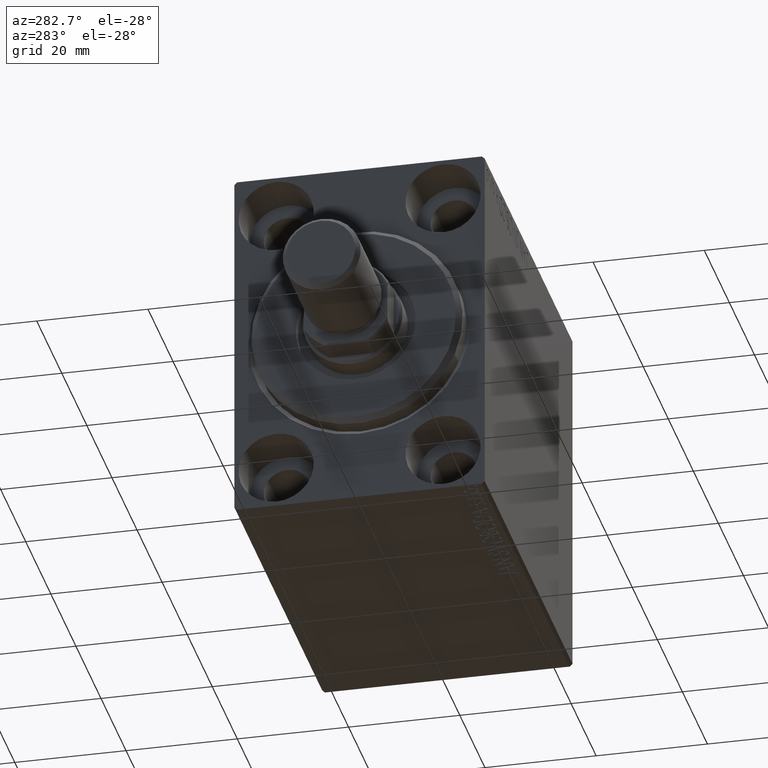
[diagram: clean part render]
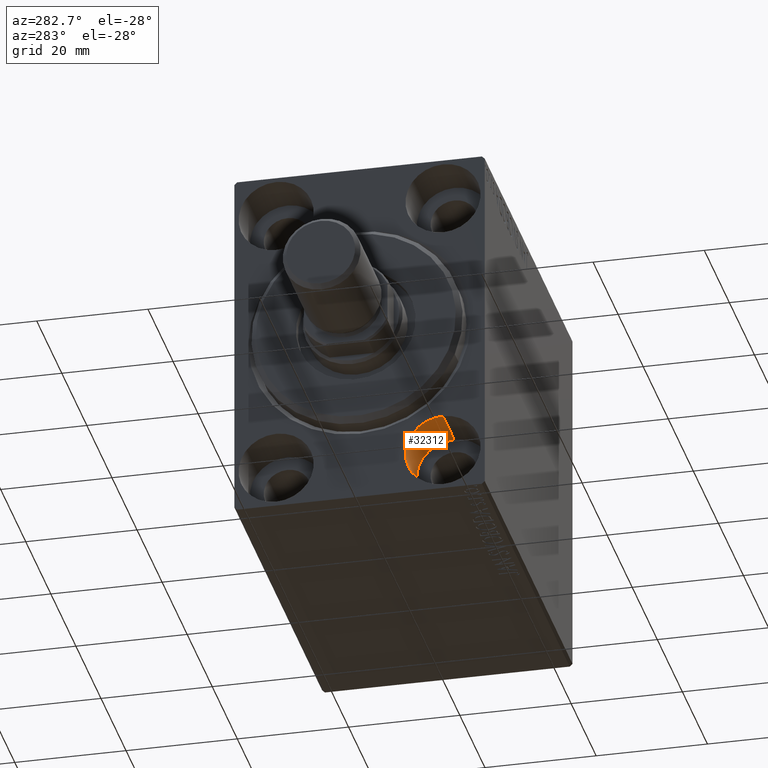
[diagram: same view with one face highlighted and labeled with its STEP entity id]
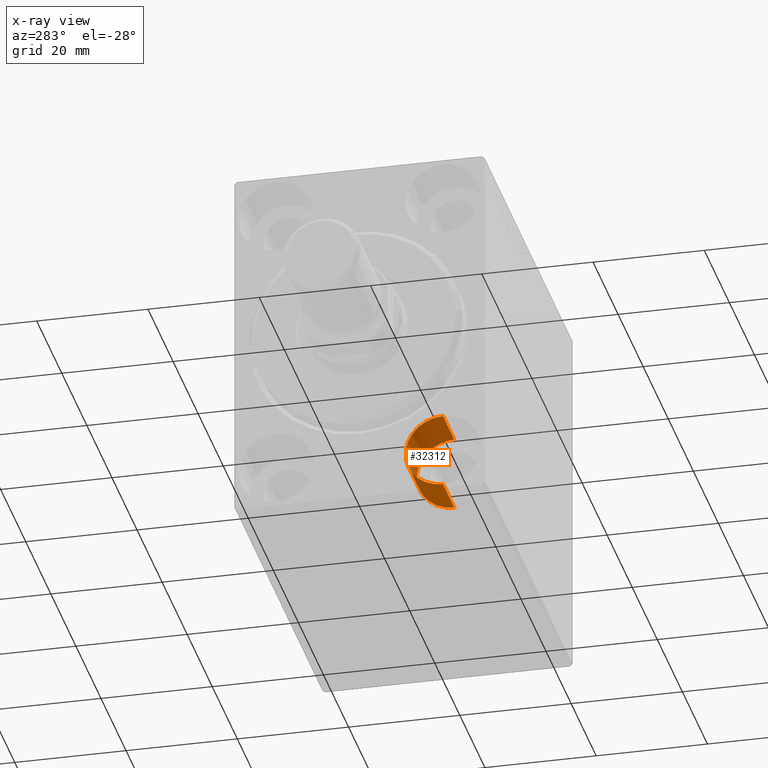
[diagram: x-ray of the same camera — body ghosted, the highlighted face saturated]
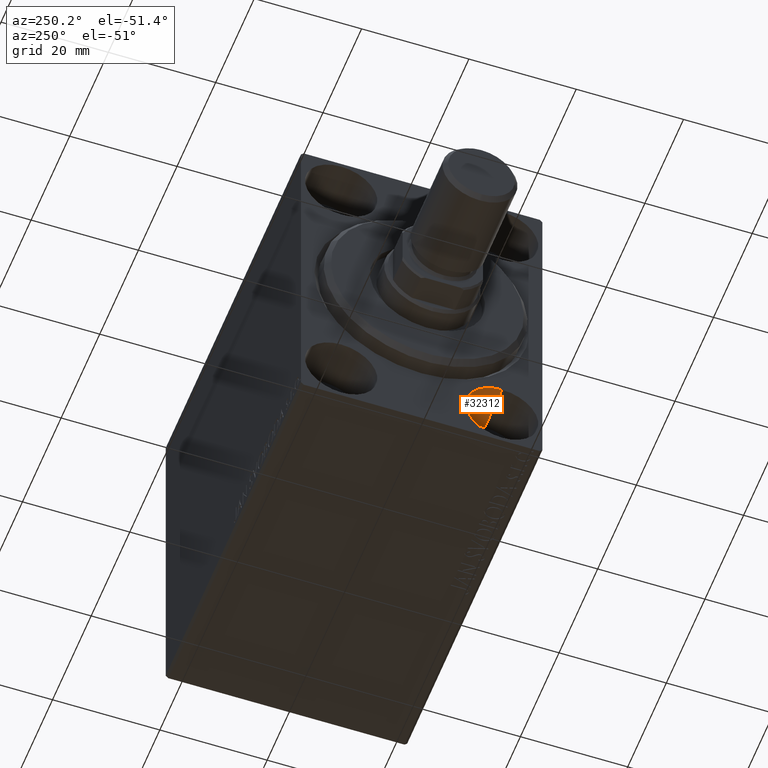
[diagram: same view with one face highlighted and labeled with its STEP entity id]
A machine part, auxiliary view. The second image highlights one B-rep face of the part: STEP entity #32312.
The next image is the same camera in x-ray: the body ghosted, the highlighted face saturated — about 0% of this face is hidden behind the body in this view.
A second angle (auxiliary view) of the same face is appended — the face is thin or edge-on in the first view.
In plain terms, the highlighted cylindrical surface (partial cylindrical patch) has radius 6.75 mm, axis along (-1, -0, -0).
Its self-contained STEP definition (entity closure, byte-faithful):
#1242 = CARTESIAN_POINT ( 'NONE',  ( 0.000000000000000000, -15.00000000000000355, -31.75000000000000000 ) ) ;
#1720 = AXIS2_PLACEMENT_3D ( 'NONE', #19889, #20110, #20325 ) ;
#3024 = CYLINDRICAL_SURFACE ( 'NONE', #1720, 6.749999999999999112 ) ;
#4240 = AXIS2_PLACEMENT_3D ( 'NONE', #6018, #13413, #6460 ) ;
#4946 = ORIENTED_EDGE ( 'NONE', *, *, #7573, .T. ) ;
#5409 = CIRCLE ( 'NONE', #44126, 6.749999999999999112 ) ;
#6018 = CARTESIAN_POINT ( 'NONE',  ( 0.000000000000000000, -15.00000000000000355, -25.00000000000000000 ) ) ;
#6173 = FACE_OUTER_BOUND ( 'NONE', #24778, .T. ) ;
#6460 = DIRECTION ( 'NONE',  ( 0.000000000000000000, 0.000000000000000000, 1.000000000000000000 ) ) ;
#7573 = EDGE_CURVE ( 'NONE', #18255, #11065, #37252, .T. ) ;
#9304 = VECTOR ( 'NONE', #23442, 1000.000000000000000 ) ;
#9731 = CARTESIAN_POINT ( 'NONE',  ( 9.000000000000000000, -15.00000000000000355, -18.25000000000000355 ) ) ;
#10963 = CARTESIAN_POINT ( 'NONE',  ( 9.000000000000000000, -15.00000000000000355, -18.25000000000000355 ) ) ;
#11065 = VERTEX_POINT ( 'NONE', #1242 ) ;
#13413 = DIRECTION ( 'NONE',  ( -1.000000000000000000, 0.000000000000000000, 0.000000000000000000 ) ) ;
#15549 = CARTESIAN_POINT ( 'NONE',  ( 9.000000000000000000, -15.00000000000000355, -25.00000000000000000 ) ) ;
#17732 = CARTESIAN_POINT ( 'NONE',  ( 9.000000000000000000, -15.00000000000000355, -31.75000000000000000 ) ) ;
#18033 = DIRECTION ( 'NONE',  ( 0.000000000000000000, 0.000000000000000000, 1.000000000000000000 ) ) ;
#18255 = VERTEX_POINT ( 'NONE', #20575 ) ;
#19889 = CARTESIAN_POINT ( 'NONE',  ( 9.000000000000000000, -15.00000000000000355, -25.00000000000000000 ) ) ;
#20110 = DIRECTION ( 'NONE',  ( -1.000000000000000000, -0.000000000000000000, -0.000000000000000000 ) ) ;
#20226 = ORIENTED_EDGE ( 'NONE', *, *, #39812, .F. ) ;
#20325 = DIRECTION ( 'NONE',  ( 0.000000000000000000, 0.000000000000000000, 1.000000000000000000 ) ) ;
#20439 = EDGE_CURVE ( 'NONE', #30819, #18255, #20520, .T. ) ;
#20520 = LINE ( 'NONE', #9731, #9304 ) ;
#20575 = CARTESIAN_POINT ( 'NONE',  ( 0.000000000000000000, -15.00000000000000355, -18.25000000000000355 ) ) ;
#23135 = LINE ( 'NONE', #36827, #28182 ) ;
#23442 = DIRECTION ( 'NONE',  ( -1.000000000000000000, -0.000000000000000000, -0.000000000000000000 ) ) ;
#24778 = EDGE_LOOP ( 'NONE', ( #34523, #20226, #29356, #4946 ) ) ;
#27715 = EDGE_CURVE ( 'NONE', #36304, #11065, #23135, .T. ) ;
#28182 = VECTOR ( 'NONE', #30304, 1000.000000000000000 ) ;
#29356 = ORIENTED_EDGE ( 'NONE', *, *, #20439, .T. ) ;
#30304 = DIRECTION ( 'NONE',  ( -1.000000000000000000, -0.000000000000000000, -0.000000000000000000 ) ) ;
#30819 = VERTEX_POINT ( 'NONE', #10963 ) ;
#32312 = ADVANCED_FACE ( 'NONE', ( #6173 ), #3024, .F. ) ;
#34523 = ORIENTED_EDGE ( 'NONE', *, *, #27715, .F. ) ;
#35534 = DIRECTION ( 'NONE',  ( -1.000000000000000000, 0.000000000000000000, 0.000000000000000000 ) ) ;
#36304 = VERTEX_POINT ( 'NONE', #17732 ) ;
#36827 = CARTESIAN_POINT ( 'NONE',  ( 9.000000000000000000, -15.00000000000000355, -31.75000000000000000 ) ) ;
#37252 = CIRCLE ( 'NONE', #4240, 6.749999999999999112 ) ;
#39812 = EDGE_CURVE ( 'NONE', #30819, #36304, #5409, .T. ) ;
#44126 = AXIS2_PLACEMENT_3D ( 'NONE', #15549, #35534, #18033 ) ;